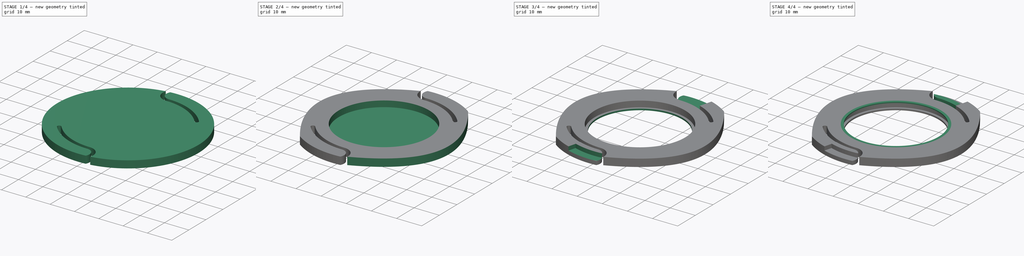
[diagram: build sequence overview — one tinted view per stage of 4, left to right]
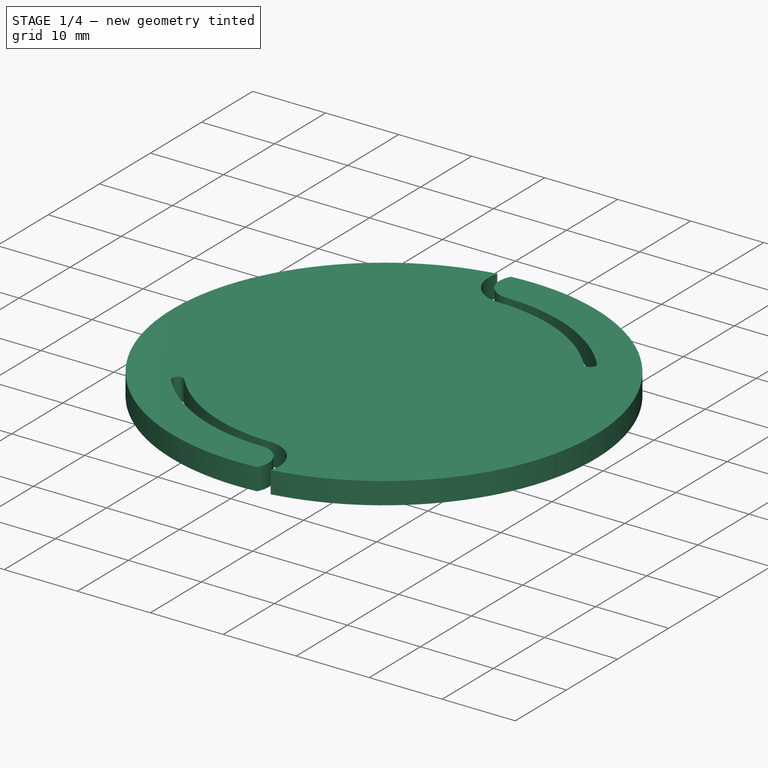
[diagram: stage 1 of 4 — iso view after this stage's code; geometry added in this stage tinted green]
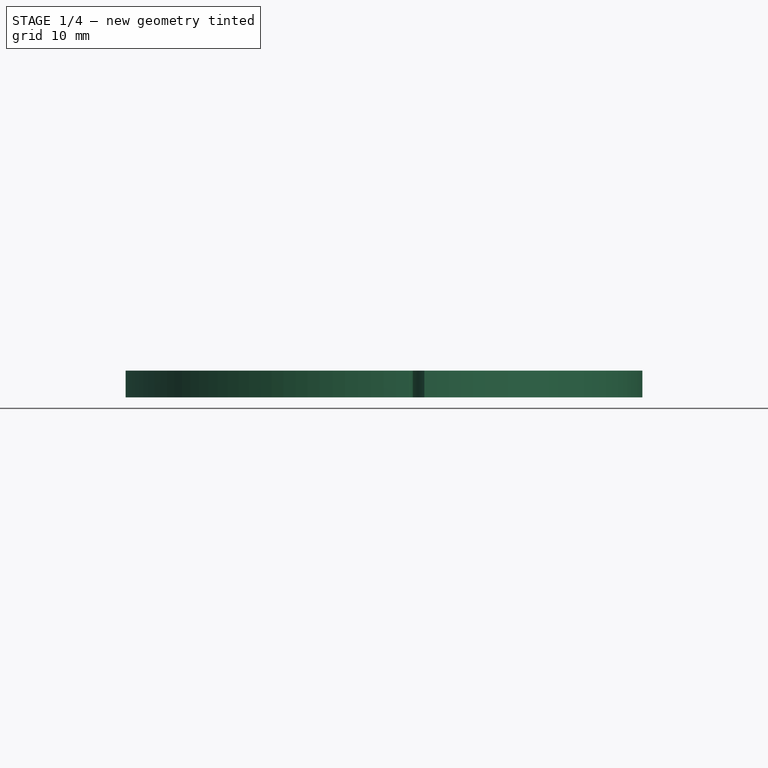
[diagram: stage 1 of 4 — front view after this stage's code; geometry added in this stage tinted green]
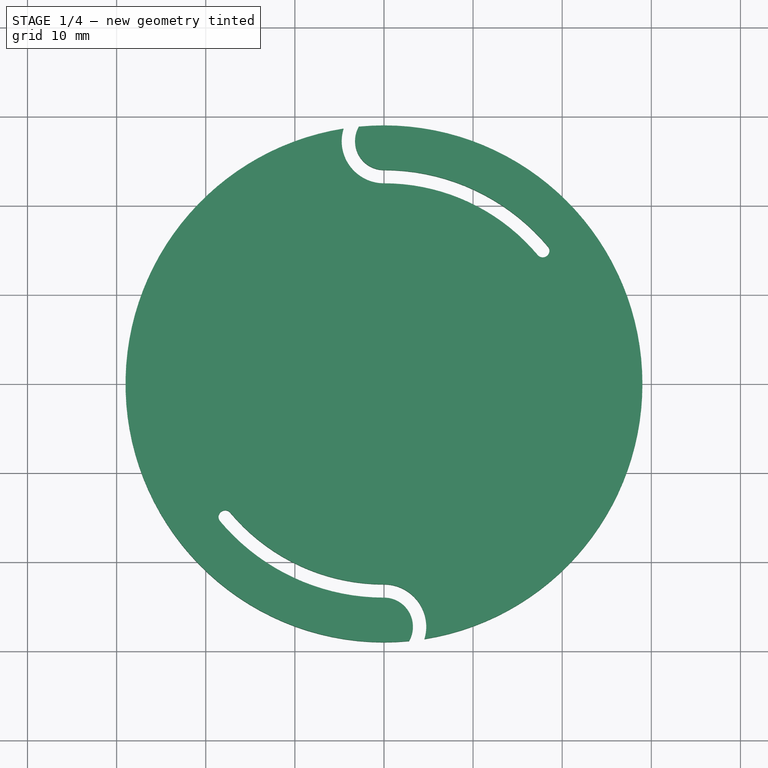
[diagram: stage 1 of 4 — top view after this stage's code; geometry added in this stage tinted green]
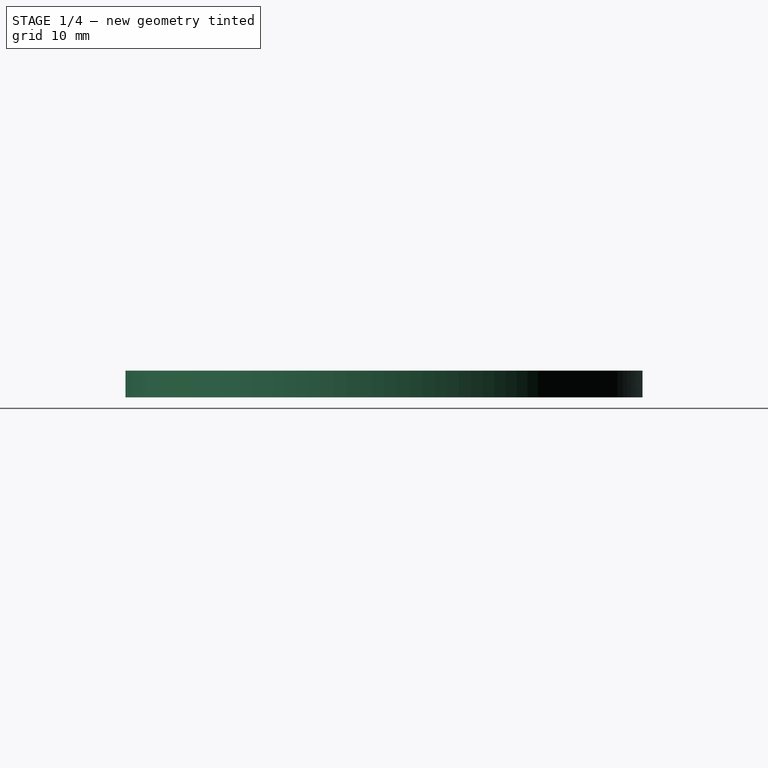
[diagram: stage 1 of 4 — right view after this stage's code; geometry added in this stage tinted green]
FCSTD DOCUMENT  (FreeCAD 1.0R39285 (Git))
Label: gf670_filter_holder
License: All rights reserved
LicenseURL: http://en.wikipedia.org/wiki/All_rights_reserved
objects: Sketcher::SketchObject×9, PartDesign::Pocket×6, PartDesign::PolarPattern×4, PartDesign::Pad×3, PartDesign::Body×1
note: 54 computed .brp shape members not serialized (recipe doc carries the construction recipe); baked Part::Feature solids carry a one-line shape summary decoded from their .brp

FEATURE [Sketcher::SketchObject] Sketch
  ArcFitTolerance = 0
  AttachmentSupport = -> [XY_Plane]
  FullyConstrained = true
  MakeInternals = false
  MapMode = 5
  sketch-geometry (1):
    g0: Circle CenterX=0 CenterY=0 CenterZ=0 NormalX=0 NormalY=0 NormalZ=1 AngleXU=0 Radius=29
  constraints (2):
    c: Coincident(g0,g-1)
    c: Radius(g0) = 29
FEATURE [PartDesign::Pad] Pad
  AllowMultiFace = false
  Direction = (0,0,1)
  Length = 3
  Length2 = 100
  Profile = -> Sketch
  Suppressed = false
  Type = 0
FEATURE [Sketcher::SketchObject] Sketch001
  ArcFitTolerance = 0
  AttachmentSupport = -> [Pad]
  FullyConstrained = false
  MakeInternals = false
  MapMode = 5
  Placement = pos=(0,0,3) rot=(0,0,1;0rad)
  sketch-geometry (6):
    g0: ArcOfCircle CenterX=0 CenterY=0 CenterZ=0 NormalX=0 NormalY=0 NormalZ=1 AngleXU=0 Radius=24 StartAngle=3.83972 EndAngle=4.71239
    g1: ArcOfCircle CenterX=0 CenterY=0 CenterZ=0 NormalX=0 NormalY=0 NormalZ=1 AngleXU=0 Radius=22.5 StartAngle=3.83972 EndAngle=4.71239
    g2: ArcOfCircle CenterX=-17.8147 CenterY=-14.9398 CenterZ=0 NormalX=0 NormalY=0 NormalZ=1 AngleXU=0 Radius=0.750028 StartAngle=0.689483 EndAngle=3.84837
    g3: ArcOfCircle CenterX=0 CenterY=-27.2466 CenterZ=0 NormalX=0 NormalY=0 NormalZ=1 AngleXU=0 Radius=3.24662 StartAngle=5.37209 EndAngle=7.85398
    g4: ArcOfCircle CenterX=0 CenterY=-27.2466 CenterZ=0 NormalX=0 NormalY=0 NormalZ=1 AngleXU=0 Radius=4.74662 StartAngle=5.57347 EndAngle=7.85398
    g5: ArcOfCircle CenterX=2.54324 CenterY=-30.8449 CenterZ=0 NormalX=0 NormalY=0 NormalZ=1 AngleXU=0 Radius=1.17185 StartAngle=2.06268 EndAngle=6.72904
  constraints (16):
    c: Coincident(g0,g-1)
    c: PointOnObject(g0,g-2)
    c: Coincident(g1,g0)
    c: PointOnObject(g1,g-2)
    c: Angle(g1) = 0.872665
    c: Angle(g0) = 0.872665
    c: DistanceY(g0,g1) = 1.5
    c: DistanceY(g0,g0) = 24
    c: Coincident(g2,g0)
    c: Coincident(g2,g1)
    c: PointOnObject(g3,g-2)
    c: Coincident(g3,g0)
    c: Coincident(g4,g3)
    c: Coincident(g4,g1)
    c: Coincident(g5,g3)
    c: Coincident(g5,g4)
FEATURE [PartDesign::Pocket] Pocket
  AllowMultiFace = false
  BaseFeature = -> Pad
  Direction = (0,0,-1)
  Length = 5
  Length2 = 100
  Profile = -> Sketch001
  Suppressed = false
  Type = 0
FEATURE [PartDesign::PolarPattern] PolarPattern
  Angle = 360
  Axis = -> Sketch001 [N_Axis]
  BaseFeature = -> Pocket
  Mode = 0
  Occurrences = 2
  Offset = 120
  Originals = -> [Pocket]
  Suppressed = false
  TransformMode = 0
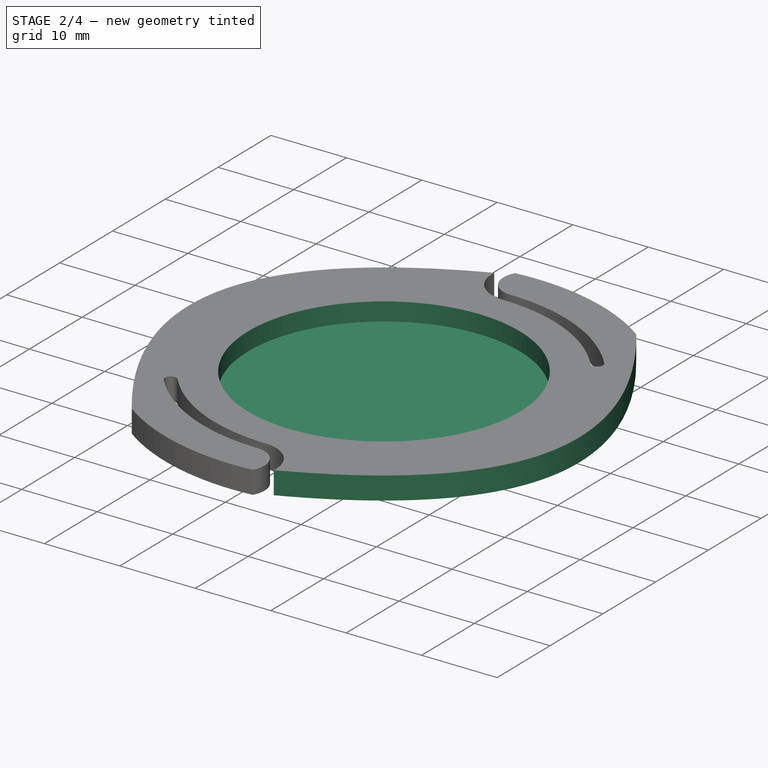
[diagram: stage 2 of 4 — iso view after this stage's code; geometry added in this stage tinted green]
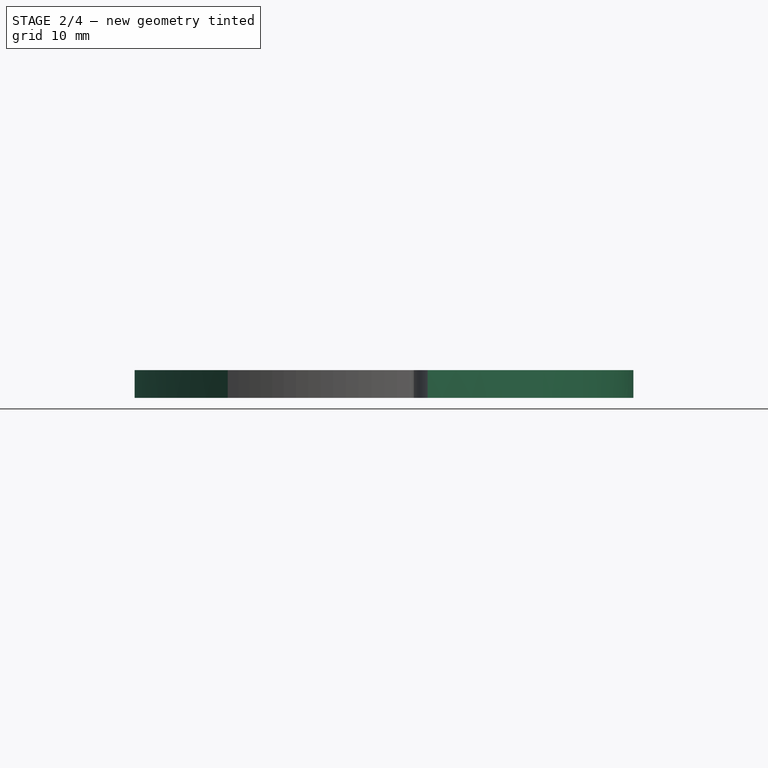
[diagram: stage 2 of 4 — front view after this stage's code; geometry added in this stage tinted green]
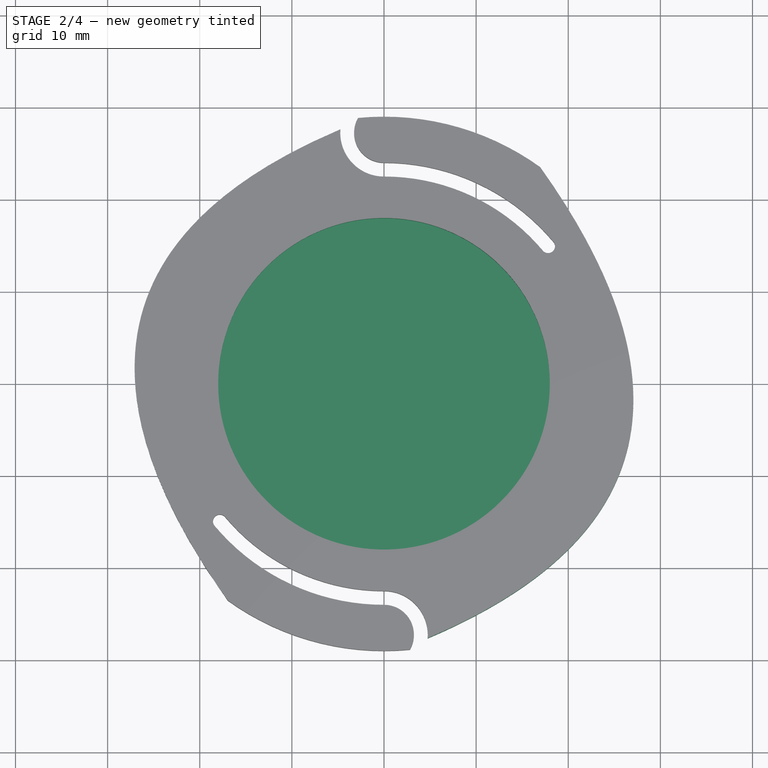
[diagram: stage 2 of 4 — top view after this stage's code; geometry added in this stage tinted green]
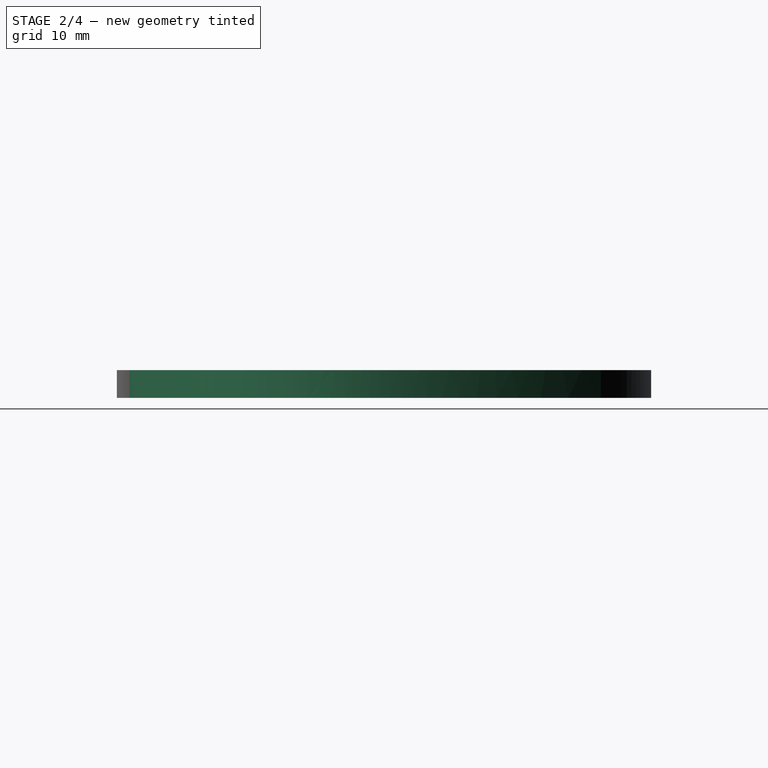
[diagram: stage 2 of 4 — right view after this stage's code; geometry added in this stage tinted green]
FEATURE [Sketcher::SketchObject] Sketch002
  ArcFitTolerance = 0
  AttachmentSupport = -> [PolarPattern]
  ExternalGeometry = -> [PolarPattern]
  FullyConstrained = false
  MakeInternals = false
  MapMode = 5
  Placement = pos=(0,0,3) rot=(0,0,1;0rad)
  sketch-geometry (11):
    g0: Circle [constr] CenterX=-3.07471 CenterY=28.3151 CenterZ=0 NormalX=0 NormalY=0 NormalZ=1 AngleXU=0 Radius=5
    g1: Circle [constr] CenterX=-42.7347 CenterY=12.512 CenterZ=0 NormalX=0 NormalY=0 NormalZ=1 AngleXU=0 Radius=5
    g2: Circle [constr] CenterX=-16.8522 CenterY=-23.6737 CenterZ=0 NormalX=0 NormalY=0 NormalZ=1 AngleXU=0 Radius=5
    g3: BSplineCurve PolesCount=3 KnotsCount=2 Degree=2 IsPeriodic=0
    g4: GeomPoint [constr] X=-3.07471 Y=28.3151 Z=0
    g5: GeomPoint [constr] X=-16.8522 Y=-23.6737 Z=0
    g6: LineSegment StartX=-3.07471 StartY=28.3151 StartZ=0 EndX=-7.23526 EndY=36.2201 EndZ=0
    g7: LineSegment StartX=-7.23526 StartY=36.2201 StartZ=0 EndX=-39.3257 EndY=4.3753 EndZ=0
    g8: LineSegment StartX=-39.3257 StartY=4.3753 StartZ=0 EndX=-32.544 EndY=-28.8259 EndZ=0
    g9: LineSegment StartX=-32.544 StartY=-28.8259 StartZ=0 EndX=-19.9791 EndY=-30.3653 EndZ=0
    g10: LineSegment StartX=-19.9791 StartY=-30.3653 StartZ=0 EndX=-16.8522 EndY=-23.6737 EndZ=0
  constraints (14):
    c: Radius(g0) = 5
    c: Equal(g0,g1)
    c: Equal(g0,g2)
    c: InternalAlignment(g0,g3)
    c: InternalAlignment(g1,g3)
    c: InternalAlignment(g2,g3)
    c: InternalAlignment(g4,g3)
    c: InternalAlignment(g5,g3)
    c: Coincident(g6,g3)
    c: Coincident(g6,g7)
    c: Coincident(g7,g8)
    c: Coincident(g8,g9)
    c: Coincident(g9,g10)
    c: Coincident(g10,g3)
FEATURE [PartDesign::Pocket] Pocket001
  AllowMultiFace = false
  BaseFeature = -> PolarPattern
  Direction = (0,0,-1)
  Length = 5
  Length2 = 100
  Profile = -> Sketch002
  Suppressed = false
  Type = 0
FEATURE [PartDesign::PolarPattern] PolarPattern001
  Angle = 360
  Axis = -> Sketch002 [N_Axis]
  BaseFeature = -> Pocket001
  Mode = 0
  Occurrences = 2
  Offset = 120
  Originals = -> [Pocket001]
  Suppressed = false
  TransformMode = 0
FEATURE [Sketcher::SketchObject] Sketch003
  ArcFitTolerance = 0
  AttachmentSupport = -> [PolarPattern001]
  FullyConstrained = true
  MakeInternals = false
  MapMode = 5
  Placement = pos=(0,0,3) rot=(0,0,1;0rad)
  sketch-geometry (1):
    g0: Circle CenterX=0 CenterY=0 CenterZ=0 NormalX=0 NormalY=0 NormalZ=1 AngleXU=0 Radius=18
  constraints (2):
    c: Coincident(g0,g-1)
    c: Radius(g0) = 18
FEATURE [PartDesign::Pocket] Pocket002
  AllowMultiFace = false
  BaseFeature = -> PolarPattern001
  Direction = (0,0,-1)
  Length = 2.4
  Length2 = 100
  Profile = -> Sketch003
  Suppressed = false
  Type = 0
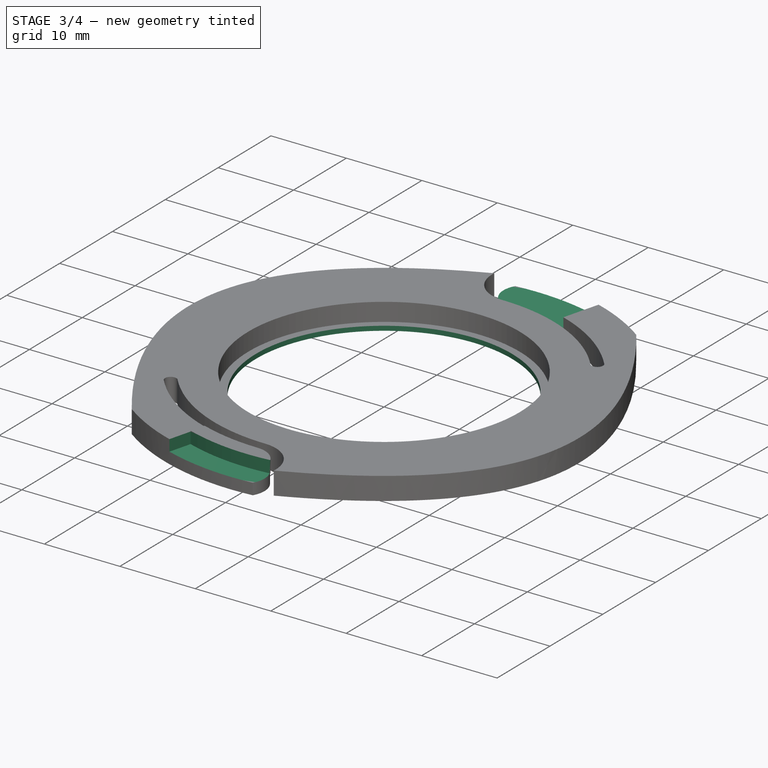
[diagram: stage 3 of 4 — iso view after this stage's code; geometry added in this stage tinted green]
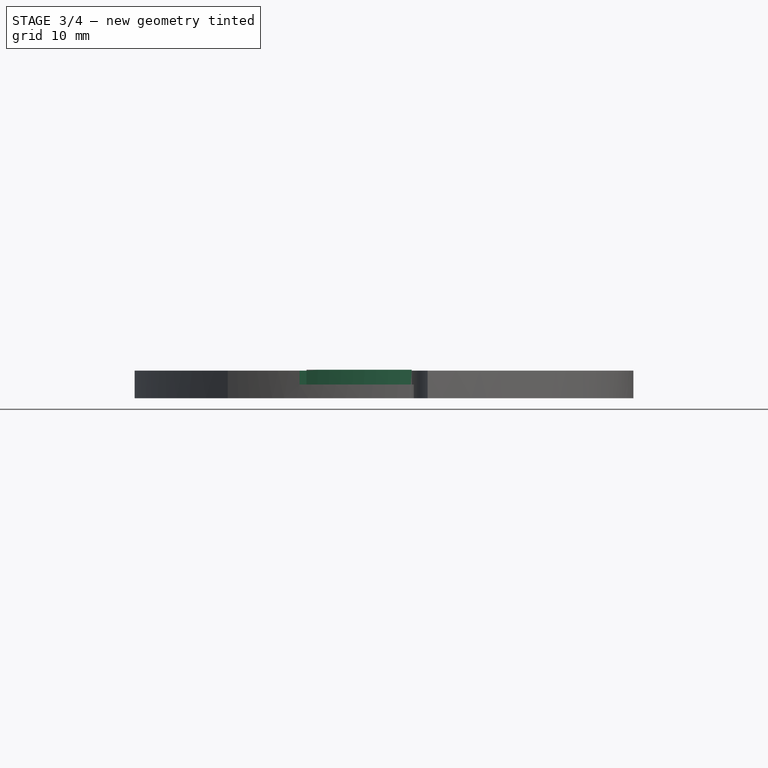
[diagram: stage 3 of 4 — front view after this stage's code; geometry added in this stage tinted green]
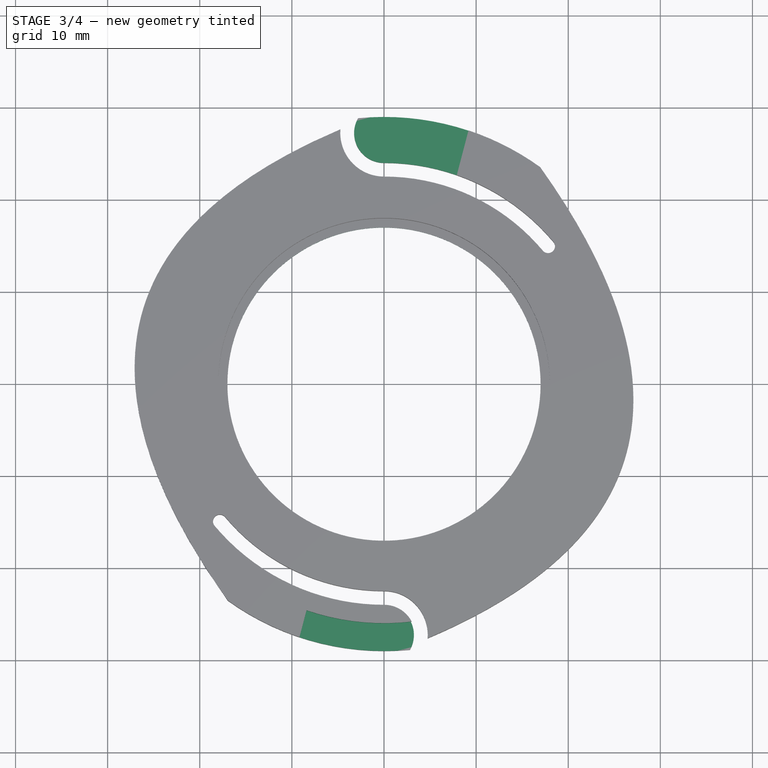
[diagram: stage 3 of 4 — top view after this stage's code; geometry added in this stage tinted green]
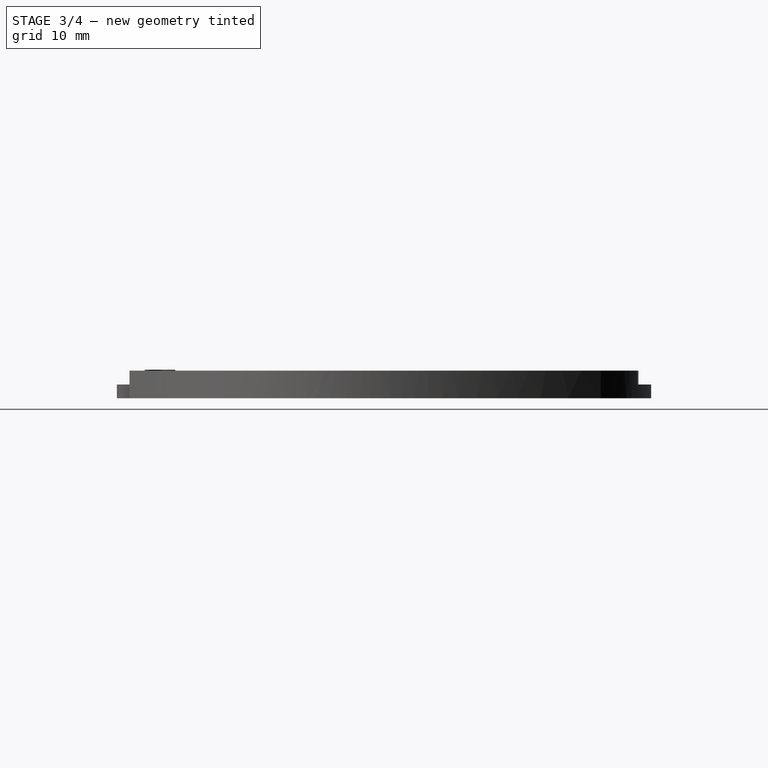
[diagram: stage 3 of 4 — right view after this stage's code; geometry added in this stage tinted green]
FEATURE [Sketcher::SketchObject] Sketch004
  ArcFitTolerance = 0
  AttachmentSupport = -> [Pocket002]
  FullyConstrained = true
  MakeInternals = false
  MapMode = 5
  Placement = pos=(0,0,0.6) rot=(0,0,1;0rad)
  sketch-geometry (1):
    g0: Circle CenterX=0 CenterY=0 CenterZ=0 NormalX=0 NormalY=0 NormalZ=1 AngleXU=0 Radius=17
  constraints (2):
    c: Coincident(g0,g-1)
    c: Radius(g0) = 17
FEATURE [PartDesign::Pocket] Pocket003
  AllowMultiFace = false
  BaseFeature = -> Pocket002
  Direction = (0,0,-1)
  Length = 5
  Length2 = 100
  Profile = -> Sketch004
  Suppressed = false
  Type = 0
FEATURE [Sketcher::SketchObject] Sketch005
  ArcFitTolerance = 0
  AttachmentSupport = -> [Pocket003]
  FullyConstrained = false
  MakeInternals = false
  MapMode = 5
  Placement = pos=(0,0,3) rot=(0,0,1;0rad)
  sketch-geometry (7):
    g0: LineSegment StartX=-7.73381 StartY=-22.0172 StartZ=0 EndX=-1.65399 EndY=-23.3837 EndZ=0
    g1: LineSegment StartX=-1.65399 StartY=-23.3837 StartZ=0 EndX=2.38992 EndY=-24.1089 EndZ=0
    g2: LineSegment StartX=2.38992 StartY=-24.1089 StartZ=0 EndX=3.92381 EndY=-27.0651 EndZ=0
    g3: LineSegment StartX=3.92381 StartY=-27.0651 StartZ=0 EndX=3.45663 EndY=-30.749 EndZ=0
    g4: LineSegment StartX=3.45663 StartY=-30.749 StartZ=0 EndX=-4.57324 EndY=-30.749 EndZ=0
    g5: LineSegment StartX=-4.57324 StartY=-30.749 StartZ=0 EndX=-10.0236 EndY=-30.749 EndZ=0
    g6: LineSegment StartX=-10.0236 StartY=-30.749 StartZ=0 EndX=-7.73381 EndY=-22.0172 EndZ=0
  constraints (9):
    c: Coincident(g0,g1)
    c: Coincident(g1,g2)
    c: Coincident(g2,g3)
    c: Coincident(g3,g4)
    c: Horizontal(g4)
    c: Coincident(g4,g5)
    c: Horizontal(g5)
    c: Coincident(g5,g6)
    c: Coincident(g6,g0)
FEATURE [PartDesign::Pocket] Pocket004
  AllowMultiFace = false
  BaseFeature = -> Pocket003
  Direction = (0,0,-1)
  Length = 1.5
  Length2 = 100
  Profile = -> Sketch005
  Suppressed = false
  Type = 0
FEATURE [PartDesign::PolarPattern] PolarPattern002
  Angle = 360
  Axis = -> Sketch005 [N_Axis]
  BaseFeature = -> Pocket004
  Mode = 0
  Occurrences = 2
  Offset = 120
  Originals = -> [Pocket004]
  Suppressed = false
  TransformMode = 0
FEATURE [Sketcher::SketchObject] Sketch006
  ArcFitTolerance = 0
  AttachmentSupport = -> [PolarPattern002]
  ExternalGeometry = -> [PolarPattern002]
  FullyConstrained = false
  MakeInternals = false
  MapMode = 5
  Placement = pos=(0,0,1.5) rot=(0,0,1;0rad)
  sketch-geometry (4):
    g0: ArcOfCircle CenterX=0 CenterY=0 CenterZ=0 NormalX=0 NormalY=0 NormalZ=1 AngleXU=0 Radius=24 StartAngle=4.37685 EndAngle=4.71239
    g1: ArcOfCircle CenterX=0 CenterY=0 CenterZ=0 NormalX=0 NormalY=0 NormalZ=1 AngleXU=0 Radius=25.9942 StartAngle=4.38292 EndAngle=4.82845
    g2: ArcOfCircle CenterX=0 CenterY=-27.3996 CenterZ=0 NormalX=0 NormalY=0 NormalZ=1 AngleXU=0 Radius=3.39963 StartAngle=0.483448 EndAngle=1.5708
    g3: LineSegment StartX=-7.90278 StartY=-22.6616 StartZ=0 EndX=-8.41009 EndY=-24.5961 EndZ=0
  constraints (11):
    c: Coincident(g0,g-1)
    c: Coincident(g0,g-3)
    c: PointOnObject(g0,g-2)
    c: PointOnObject(g1,g-3)
    c: Coincident(g2,g-4)
    c: Coincident(g2,g0)
    c: Coincident(g2,g1)
    c: Coincident(g3,g0)
    c: Coincident(g3,g1)
    c: Distance(g1,g0) = 2
    c: Coincident(g1,g0)
FEATURE [PartDesign::Pad] Pad001
  AllowMultiFace = false
  BaseFeature = -> PolarPattern002
  Direction = (1,1,1)
  Length = 1.6
  Length2 = 100
  Profile = -> Sketch006
  Suppressed = false
  Type = 0
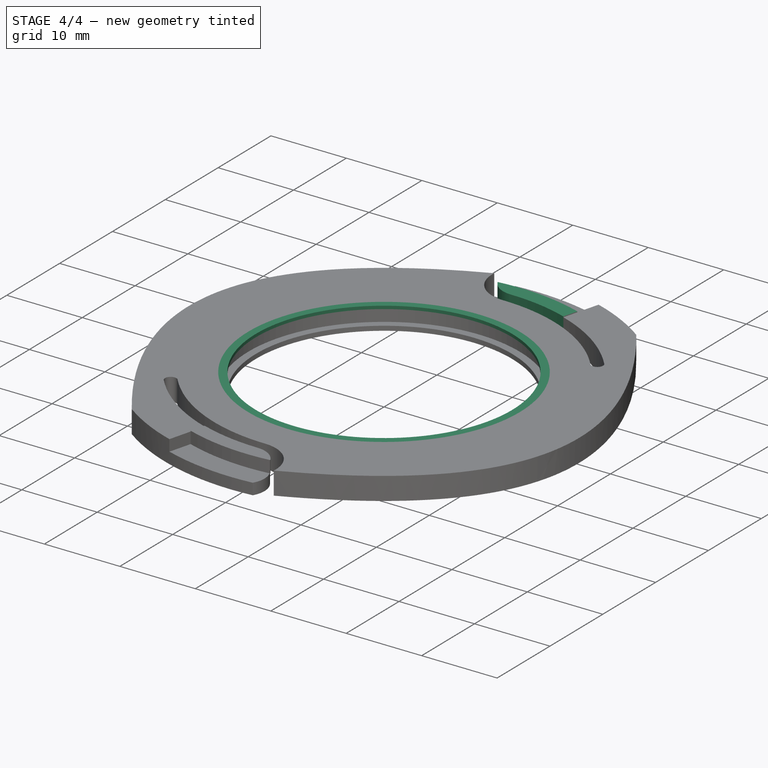
[diagram: stage 4 of 4 — iso view after this stage's code; geometry added in this stage tinted green]
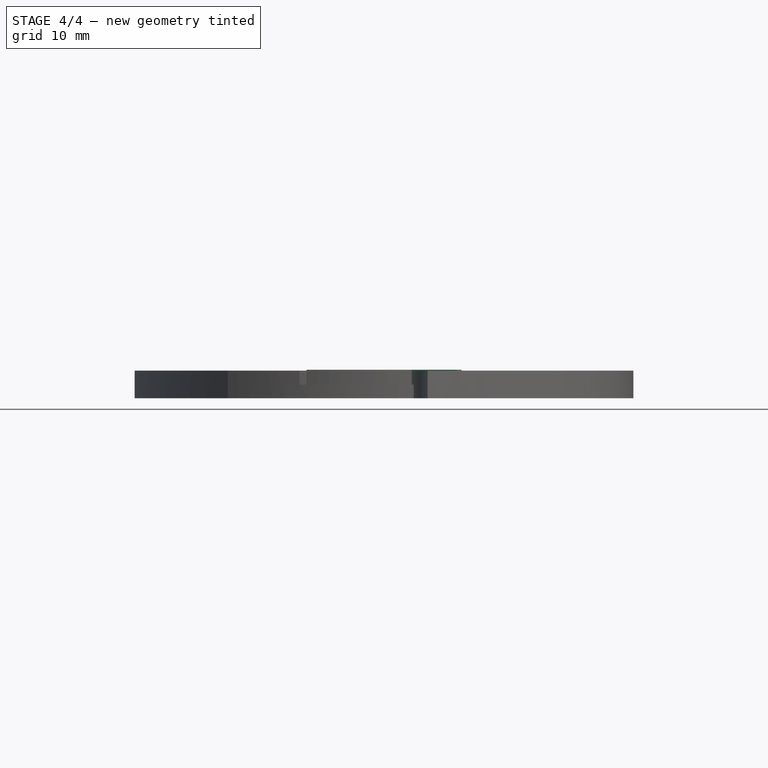
[diagram: stage 4 of 4 — front view after this stage's code; geometry added in this stage tinted green]
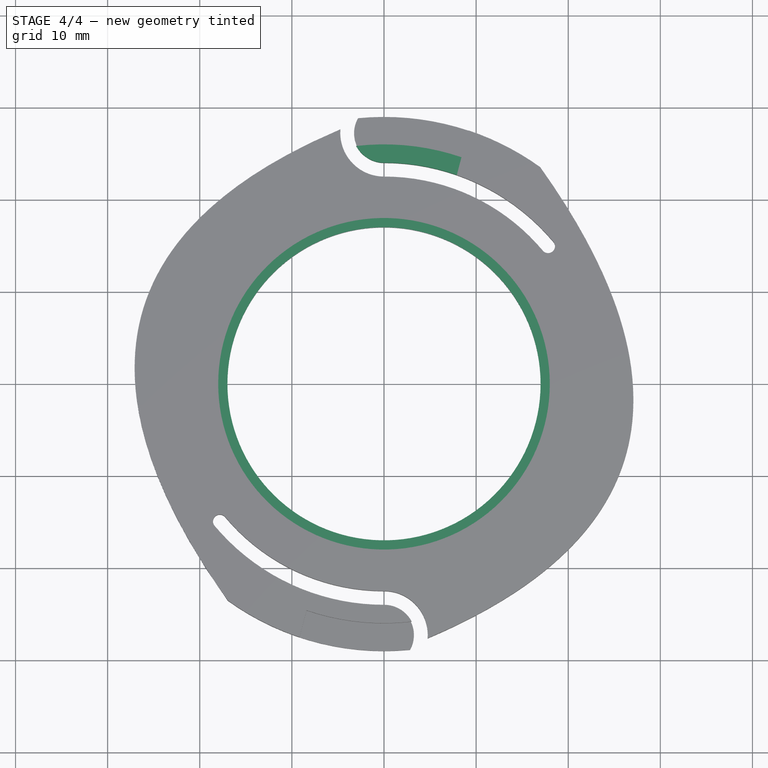
[diagram: stage 4 of 4 — top view after this stage's code; geometry added in this stage tinted green]
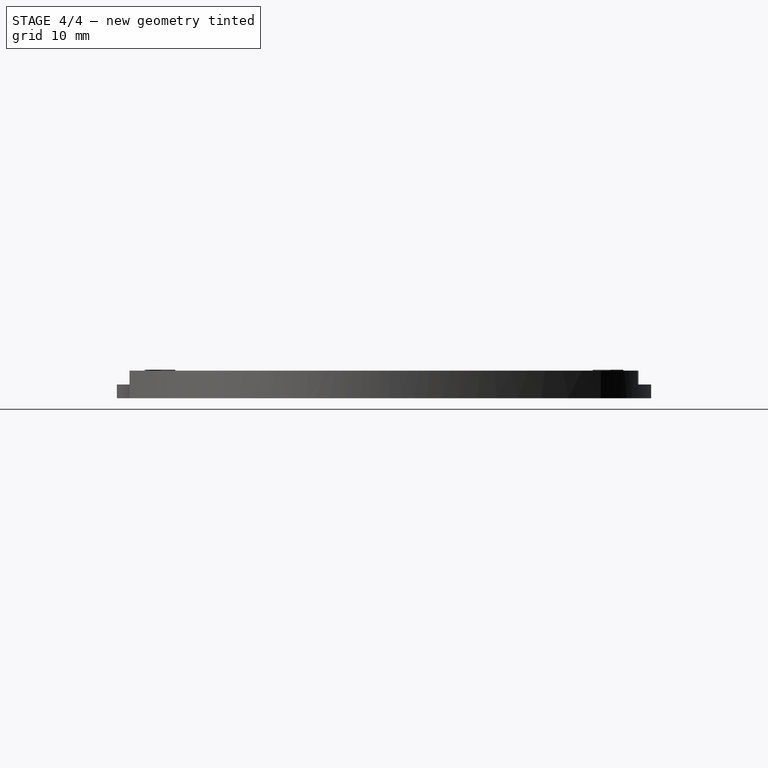
[diagram: stage 4 of 4 — right view after this stage's code; geometry added in this stage tinted green]
FEATURE [PartDesign::PolarPattern] PolarPattern003
  Angle = 360
  Axis = -> Sketch006 [N_Axis]
  BaseFeature = -> Pad001
  Mode = 0
  Occurrences = 2
  Offset = 120
  Originals = -> [Pad001]
  Suppressed = false
  TransformMode = 0
FEATURE [Sketcher::SketchObject] Sketch007
  ArcFitTolerance = 0
  AttachmentSupport = -> [PolarPattern003]
  FullyConstrained = false
  MakeInternals = false
  MapMode = 5
  Placement = pos=(0,0,3) rot=(0,0,1;0rad)
  sketch-geometry (1):
    g0: Circle CenterX=0 CenterY=0 CenterZ=0 NormalX=0 NormalY=0 NormalZ=1 AngleXU=0 Radius=18.3404
  constraints (1):
    c: Coincident(g0,g-1)
FEATURE [PartDesign::Pad] Pad002
  AllowMultiFace = false
  BaseFeature = -> PolarPattern003
  Direction = (1,1,1)
  Length = 0.4
  Length2 = 100
  Profile = -> Sketch007
  Reversed = true
  Suppressed = false
  Type = 0
FEATURE [Sketcher::SketchObject] Sketch008
  ArcFitTolerance = 0
  AttachmentSupport = -> [Pad002]
  FullyConstrained = false
  MakeInternals = false
  MapMode = 5
  Placement = pos=(0,0,3) rot=(0,0,1;0rad)
  sketch-geometry (1):
    g0: Circle CenterX=0 CenterY=0 CenterZ=0 NormalX=0 NormalY=0 NormalZ=1 AngleXU=0 Radius=17
  constraints (2):
    c: Coincident(g0,g-1)
    c: Radius(g0) = 17
FEATURE [PartDesign::Pocket] Pocket005
  AllowMultiFace = false
  BaseFeature = -> Pad002
  Direction = (1,1,1)
  Length = 5
  Length2 = 100
  Profile = -> Sketch008
  Suppressed = false
  Type = 0
FEATURE [PartDesign::Body] Body
  AllowCompound = false
  Group = -> [Sketch,Pad,Sketch001,Pocket,PolarPattern,Sketch002,Pocket001,PolarPattern001,Sketch003,Pocket002,Sketch004,Pocket003,Sketch005,Pocket004,PolarPattern002,Sketch006,Pad001,PolarPattern003,Sketch007,Pad002,Sketch008,Pocket005]
  Origin = -> Origin
  Tip = -> Pocket005
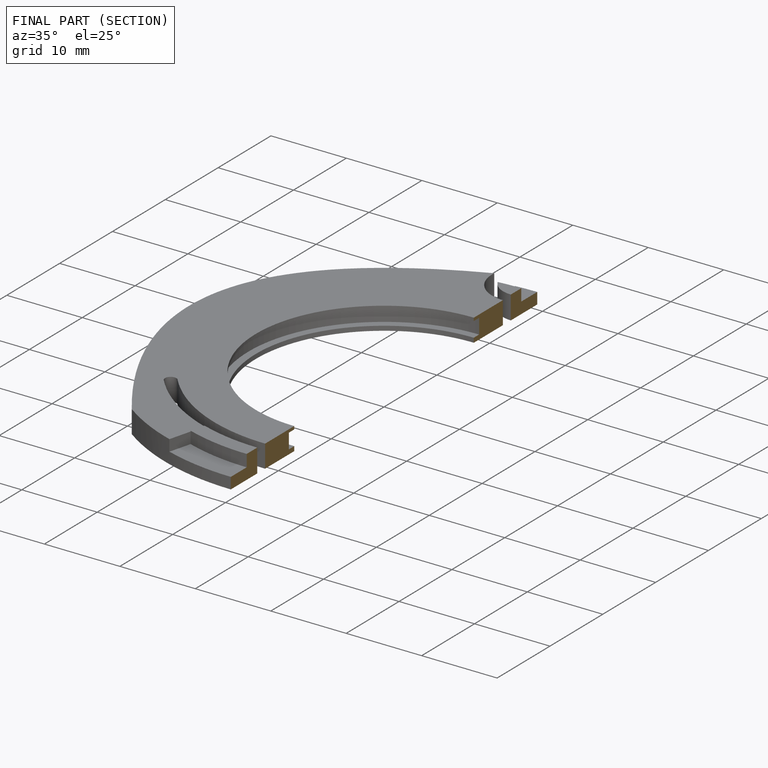
[diagram: finished part — half-section view (interior)]
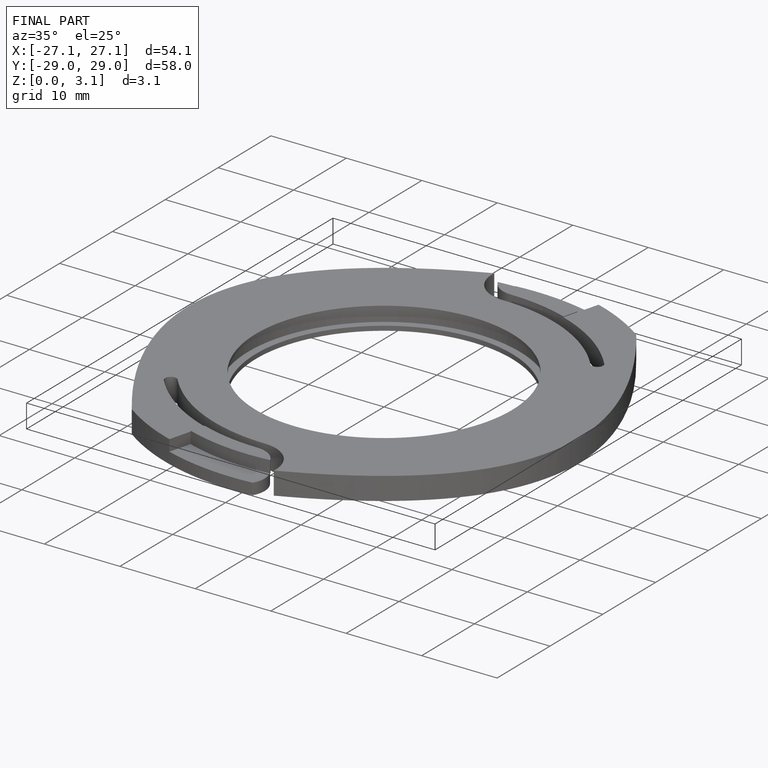
[diagram: finished part — iso view with bounding-box wireframe]
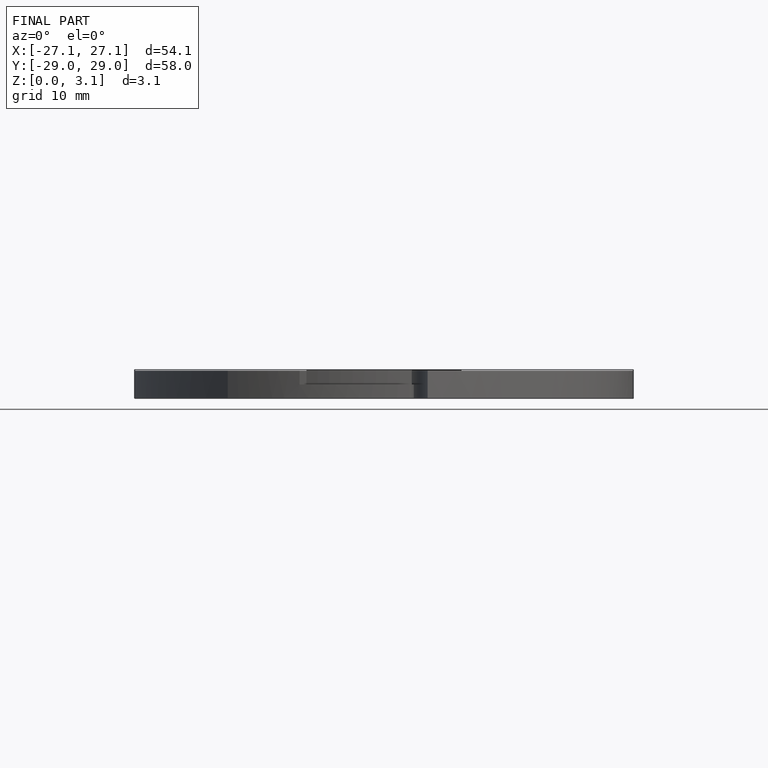
[diagram: finished part — front view with bounding-box wireframe]
